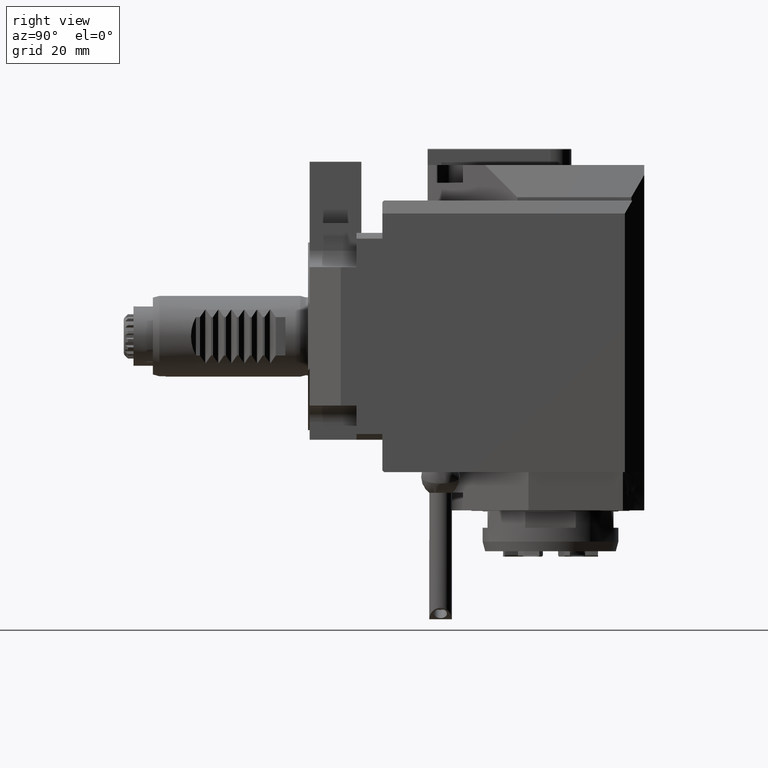
[diagram: clean part render]
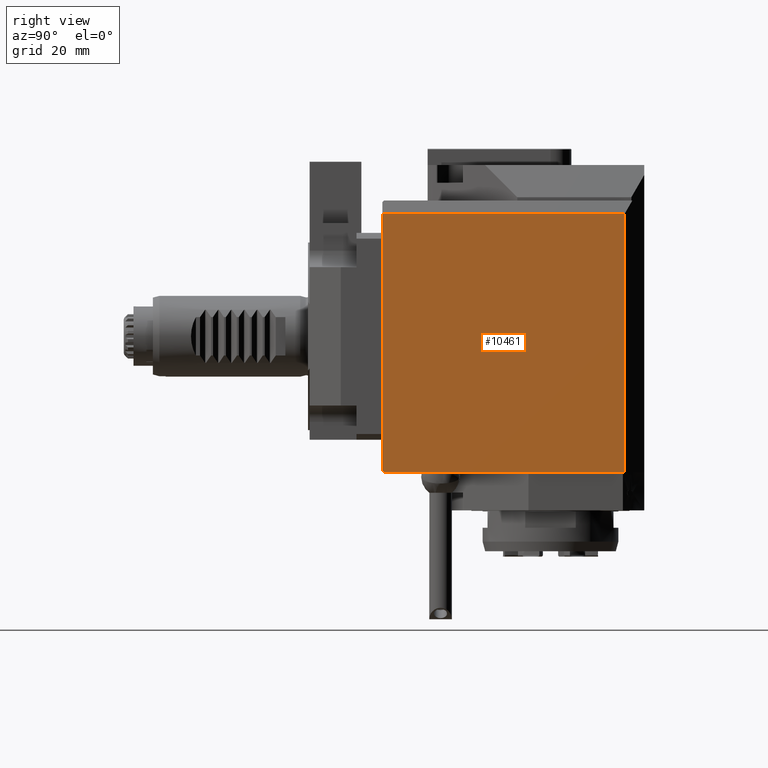
[diagram: same view with one face highlighted and labeled with its STEP entity id]
A machine part, right view. The second image highlights one B-rep face of the part: STEP entity #10461.
In plain terms, the highlighted planar face has unit normal (-1, 0, 0).
Its self-contained STEP definition (entity closure, byte-faithful):
#334 = CARTESIAN_POINT ( 'NONE',  ( 32.00000000000003553, 23.00000000000000000, 42.00000000000000711 ) ) ;
#643 = ORIENTED_EDGE ( 'NONE', *, *, #15634, .F. ) ;
#1039 = CARTESIAN_POINT ( 'NONE',  ( 32.00000000000004974, -52.00000000000009237, -41.49999999999999289 ) ) ;
#1923 = VECTOR ( 'NONE', #28868, 1000.000000000000000 ) ;
#2067 = FACE_OUTER_BOUND ( 'NONE', #9378, .T. ) ;
#2310 = CARTESIAN_POINT ( 'NONE',  ( 32.00000000000003553, 23.00000000000000000, 38.00000000000001421 ) ) ;
#3391 = EDGE_CURVE ( 'NONE', #15871, #11654, #36494, .T. ) ;
#3459 = VERTEX_POINT ( 'NONE', #23574 ) ;
#3604 = DIRECTION ( 'NONE',  ( -2.220446049250312588E-16, 1.000000000000000000, 0.000000000000000000 ) ) ;
#4736 = EDGE_CURVE ( 'NONE', #9014, #11654, #14893, .T. ) ;
#5100 = CARTESIAN_POINT ( 'NONE',  ( 32.00000000000004974, -52.00000000000009237, -41.49999999999999289 ) ) ;
#5619 = CARTESIAN_POINT ( 'NONE',  ( 32.00000000000003553, 29.00000000000002132, -42.00000000000000000 ) ) ;
#5869 = VECTOR ( 'NONE', #14508, 1000.000000000000000 ) ;
#6056 = ORIENTED_EDGE ( 'NONE', *, *, #4736, .T. ) ;
#6186 = CARTESIAN_POINT ( 'NONE',  ( 32.00000000000004974, -52.00000000000009237, 38.00000000000000000 ) ) ;
#6771 = AXIS2_PLACEMENT_3D ( 'NONE', #24654, #35894, #21865 ) ;
#7575 = ORIENTED_EDGE ( 'NONE', *, *, #3391, .F. ) ;
#7985 = DIRECTION ( 'NONE',  ( 1.178803794788639791E-17, 2.090524963806786883E-16, 1.000000000000000000 ) ) ;
#9014 = VERTEX_POINT ( 'NONE', #5100 ) ;
#9378 = EDGE_LOOP ( 'NONE', ( #18935, #6056, #7575, #17566, #9440, #643, #25832 ) ) ;
#9440 = ORIENTED_EDGE ( 'NONE', *, *, #18373, .F. ) ;
#9523 = VERTEX_POINT ( 'NONE', #30031 ) ;
#10461 = ADVANCED_FACE ( 'Defeature completata1_122', ( #2067 ), #13353, .F. ) ;
#10932 = EDGE_CURVE ( 'NONE', #18898, #15871, #14380, .T. ) ;
#11654 = VERTEX_POINT ( 'NONE', #13312 ) ;
#12039 = EDGE_CURVE ( 'NONE', #28253, #3459, #33334, .T. ) ;
#13312 = CARTESIAN_POINT ( 'NONE',  ( 32.00000000000004974, -51.50000000000009237, -41.99999999999999289 ) ) ;
#13353 = PLANE ( 'NONE',  #6771 ) ;
#13993 = EDGE_CURVE ( 'NONE', #9014, #28253, #34099, .T. ) ;
#14380 = LINE ( 'NONE', #334, #36289 ) ;
#14508 = DIRECTION ( 'NONE',  ( 0.000000000000000000, 0.000000000000000000, 1.000000000000000000 ) ) ;
#14893 = LINE ( 'NONE', #1039, #31036 ) ;
#15275 = DIRECTION ( 'NONE',  ( -1.570092458683775660E-16, 0.7071067811865479058, -0.7071067811865472397 ) ) ;
#15634 = EDGE_CURVE ( 'NONE', #3459, #9523, #36227, .T. ) ;
#15871 = VERTEX_POINT ( 'NONE', #19554 ) ;
#16900 = DIRECTION ( 'NONE',  ( 2.220446049250312588E-16, -1.000000000000000000, 8.566535683836074389E-17 ) ) ;
#17566 = ORIENTED_EDGE ( 'NONE', *, *, #10932, .F. ) ;
#18373 = EDGE_CURVE ( 'NONE', #9523, #18898, #18710, .T. ) ;
#18488 = VECTOR ( 'NONE', #7985, 1000.000000000000000 ) ;
#18710 = LINE ( 'NONE', #6186, #32128 ) ;
#18898 = VERTEX_POINT ( 'NONE', #2310 ) ;
#18935 = ORIENTED_EDGE ( 'NONE', *, *, #13993, .F. ) ;
#19554 = CARTESIAN_POINT ( 'NONE',  ( 32.00000000000003553, 23.00000000000000000, -42.00000000000000000 ) ) ;
#21710 = CARTESIAN_POINT ( 'NONE',  ( 31.99999999999996447, -52.00000000000000000, 31.99999999999995737 ) ) ;
#21865 = DIRECTION ( 'NONE',  ( 0.000000000000000000, 0.000000000000000000, 1.000000000000000000 ) ) ;
#22388 = CARTESIAN_POINT ( 'NONE',  ( 32.00000000000004974, -52.00000000000009237, -41.99999999999999289 ) ) ;
#23101 = DIRECTION ( 'NONE',  ( 0.000000000000000000, 0.000000000000000000, -1.000000000000000000 ) ) ;
#23574 = CARTESIAN_POINT ( 'NONE',  ( 32.00000000000004974, -52.00000000000001421, 30.19933774108294955 ) ) ;
#24654 = CARTESIAN_POINT ( 'NONE',  ( 32.00000000000003553, -1.065814103640151225E-14, 0.000000000000000000 ) ) ;
#25494 = VECTOR ( 'NONE', #16900, 1000.000000000000000 ) ;
#25832 = ORIENTED_EDGE ( 'NONE', *, *, #12039, .F. ) ;
#27509 = CARTESIAN_POINT ( 'NONE',  ( 32.00000000000004974, -52.00000000000001421, -30.19933774108293534 ) ) ;
#28253 = VERTEX_POINT ( 'NONE', #27509 ) ;
#28868 = DIRECTION ( 'NONE',  ( 0.000000000000000000, 0.000000000000000000, 1.000000000000000000 ) ) ;
#30031 = CARTESIAN_POINT ( 'NONE',  ( 32.00000000000004974, -52.00000000000009237, 37.99999999999999289 ) ) ;
#31036 = VECTOR ( 'NONE', #15275, 999.9999999999998863 ) ;
#32128 = VECTOR ( 'NONE', #3604, 1000.000000000000000 ) ;
#33334 = LINE ( 'NONE', #21710, #18488 ) ;
#33921 = CARTESIAN_POINT ( 'NONE',  ( 32.00000000000004974, -52.00000000000009237, -41.99999999999999289 ) ) ;
#34099 = LINE ( 'NONE', #33921, #5869 ) ;
#35894 = DIRECTION ( 'NONE',  ( -1.000000000000000000, 3.330669073875468635E-16, 0.000000000000000000 ) ) ;
#36227 = LINE ( 'NONE', #22388, #1923 ) ;
#36289 = VECTOR ( 'NONE', #23101, 1000.000000000000000 ) ;
#36494 = LINE ( 'NONE', #5619, #25494 ) ;